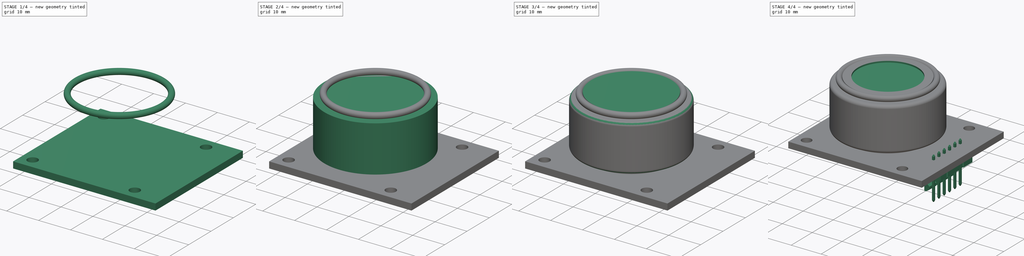
[diagram: build sequence overview — one tinted view per stage of 4, left to right]
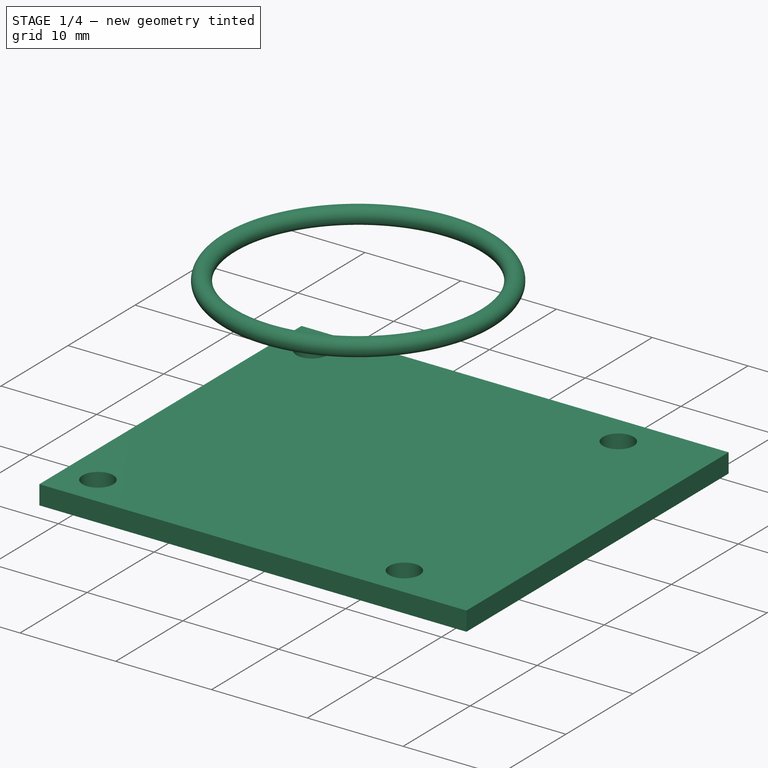
[diagram: stage 1 of 4 — iso view after this stage's code; geometry added in this stage tinted green]
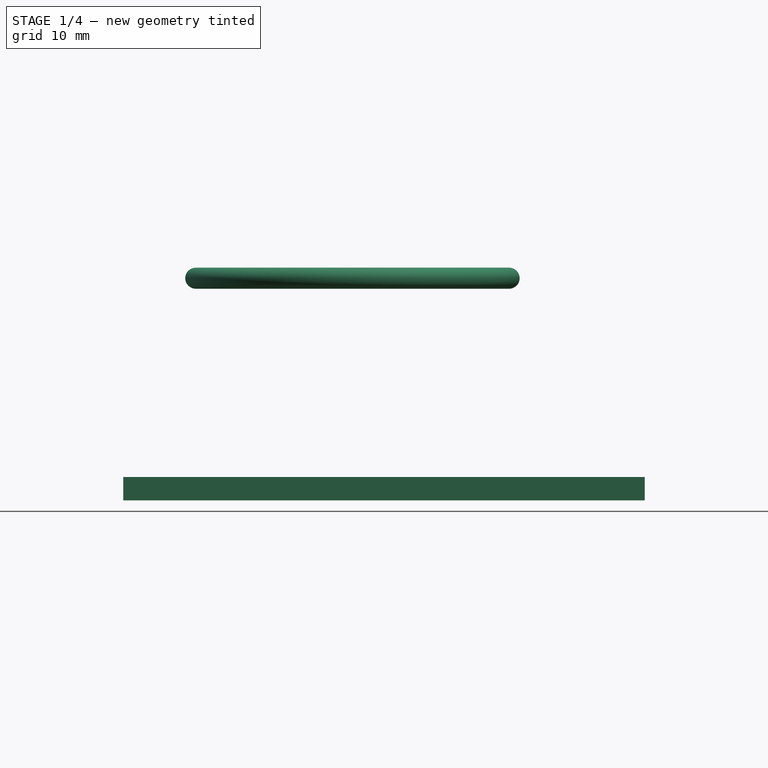
[diagram: stage 1 of 4 — front view after this stage's code; geometry added in this stage tinted green]
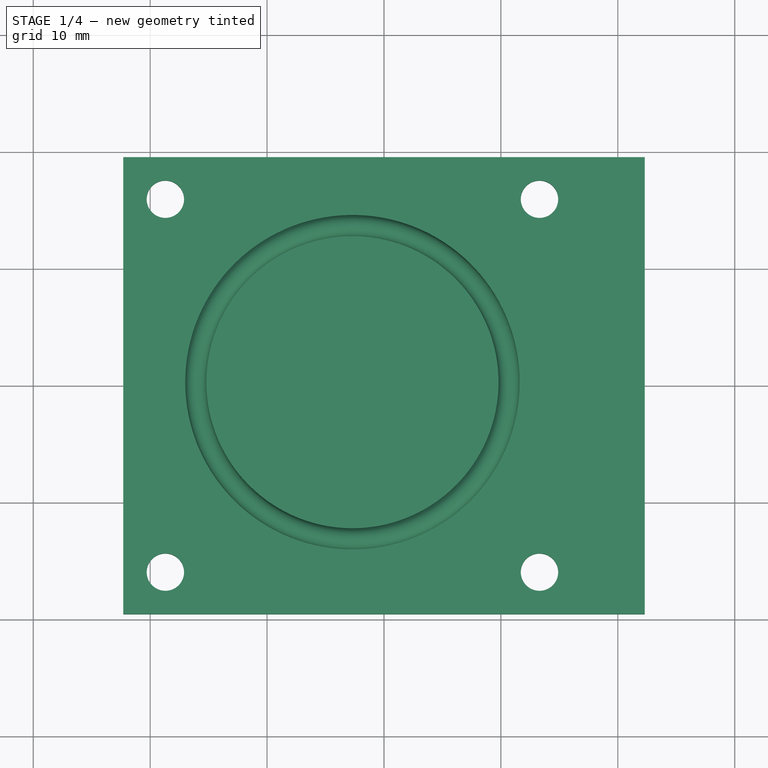
[diagram: stage 1 of 4 — top view after this stage's code; geometry added in this stage tinted green]
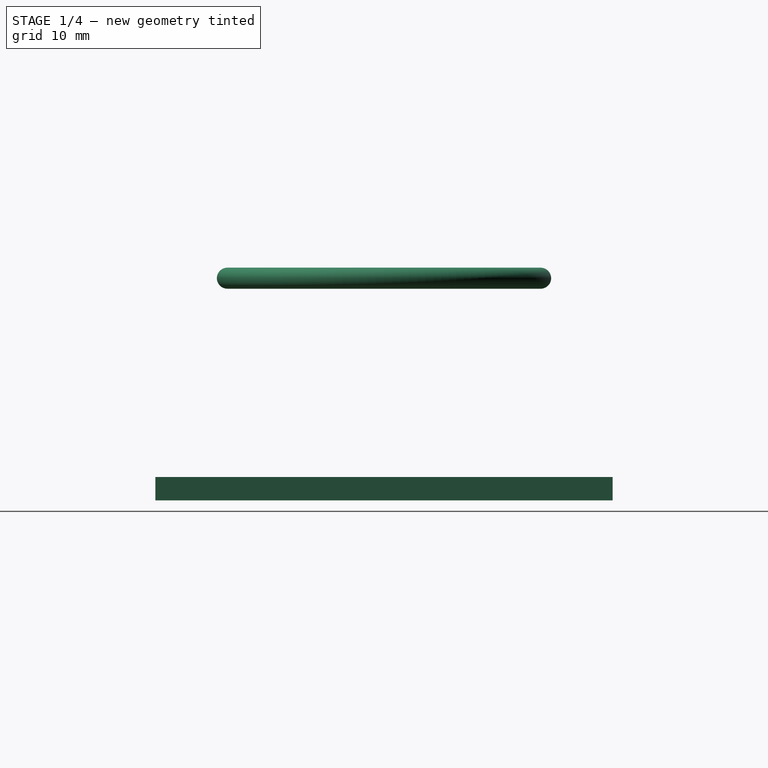
[diagram: stage 1 of 4 — right view after this stage's code; geometry added in this stage tinted green]
FCSTD DOCUMENT  (FreeCAD 0.16R6712 (Git))
Label: isb
License: All rights reserved
LicenseURL: http://en.wikipedia.org/wiki/All_rights_reserved
objects: Sketcher::SketchObject×6, PartDesign::Pad×4, PartDesign::Fillet×2, PartDesign::Pocket×1, Part::Feature×1, Part::Torus×1, Part::MultiFuse×1
note: 21 computed .brp shape members not serialized (recipe doc carries the construction recipe); baked Part::Feature solids carry a one-line shape summary decoded from their .brp

FEATURE [Sketcher::SketchObject] Sketch
  sketch-geometry (10):
    g0: LineSegment StartX=-22.3 StartY=19.55 StartZ=0 EndX=22.3 EndY=19.55 EndZ=0
    g1: LineSegment StartX=22.3 StartY=19.55 StartZ=0 EndX=22.3 EndY=-19.55 EndZ=0
    g2: LineSegment StartX=22.3 StartY=-19.55 StartZ=0 EndX=-22.3 EndY=-19.55 EndZ=0
    g3: LineSegment StartX=-22.3 StartY=-19.55 StartZ=0 EndX=-22.3 EndY=19.55 EndZ=0
    g4: Circle CenterX=-18.7 CenterY=15.95 CenterZ=0 NormalX=0 NormalY=0 NormalZ=1 Radius=1.6
    g5: Circle CenterX=13.3 CenterY=15.95 CenterZ=0 NormalX=0 NormalY=0 NormalZ=1 Radius=1.6
    g6: LineSegment [constr] StartX=-18.7 StartY=15.95 StartZ=0 EndX=13.3 EndY=15.95 EndZ=0
    g7: Circle CenterX=-18.7 CenterY=-15.95 CenterZ=0 NormalX=0 NormalY=0 NormalZ=1 Radius=1.6
    g8: LineSegment [constr] StartX=-18.7 StartY=-15.95 StartZ=0 EndX=13.3 EndY=-15.95 EndZ=0
    g9: Circle CenterX=13.3 CenterY=-15.95 CenterZ=0 NormalX=0 NormalY=0 NormalZ=1 Radius=1.6
  constraints (28):
    c: Coincident(g0,g1)
    c: Coincident(g1,g2)
    c: Coincident(g2,g3)
    c: Coincident(g3,g0)
    c: Horizontal(g2)
    c: Vertical(g1)
    c: Vertical(g3)
    c: DistanceX(g0,g0) = 44.6
    c: DistanceY(g3,g3) = 39.1
    c: Equal(g0,g2)
    c: Equal(g3,g1)
    c: Symmetric(g0,g2,g-1)
    c: Symmetric(g0,g0,g-2)
    c: Radius(g4) = 1.6
    c: DistanceX(g0,g4) = 3.6
    c: DistanceX(g4,g5) = 32
    c: DistanceY(g4,g0) = 3.6
    c: Horizontal(g6)
    c: Coincident(g6,g5)
    c: Coincident(g6,g4)
    c: Horizontal(g8)
    c: Coincident(g8,g9)
    c: Coincident(g8,g7)
    c: Symmetric(g7,g4,g-1)
    c: Equal(g4,g7)
    c: Equal(g7,g9)
    c: Equal(g5,g4)
    c: Equal(g8,g6)
FEATURE [PartDesign::Pad] Pad
  Length = 2
  Length2 = 100
  Sketch = -> Sketch
  Type = 0
FEATURE [Part::Feature] Part__Feature  label="molex kk-254"
  Placement = pos=(17,0,-1.6) rot=(-0.57735,0.57735,-0.57735;2.0944rad)
  shape: bbox 6.35 x 15.09 x 14.22 mm, 170 faces (baked)
FEATURE [Part::Torus] Torus  label="Toro"
  Angle1 = -180
  Angle2 = 180
  Angle3 = 360
  Placement = pos=(-2.7,0,19) rot=(0,0,1;0rad)
  Radius1 = 13.4
  Radius2 = 0.9
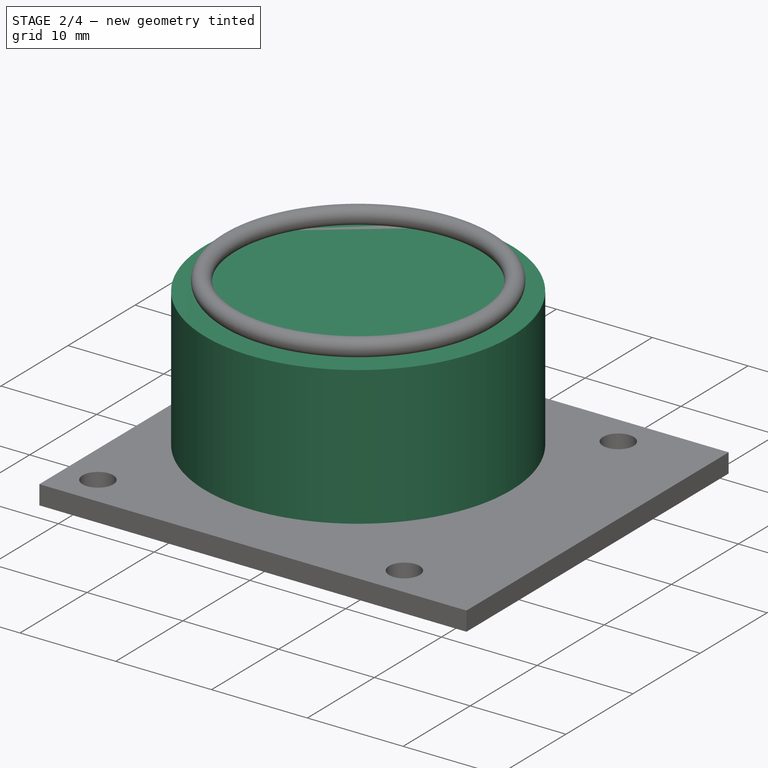
[diagram: stage 2 of 4 — iso view after this stage's code; geometry added in this stage tinted green]
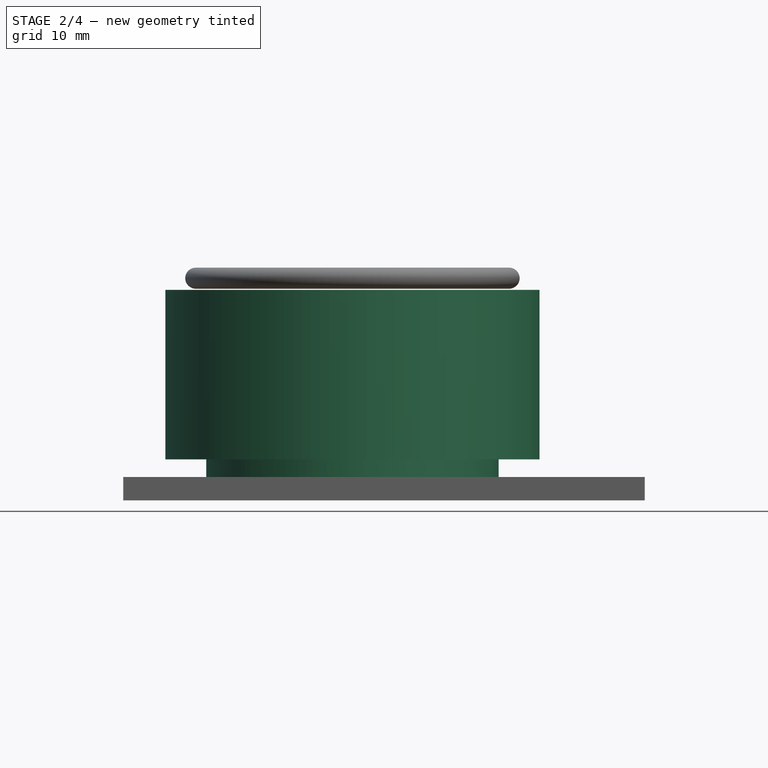
[diagram: stage 2 of 4 — front view after this stage's code; geometry added in this stage tinted green]
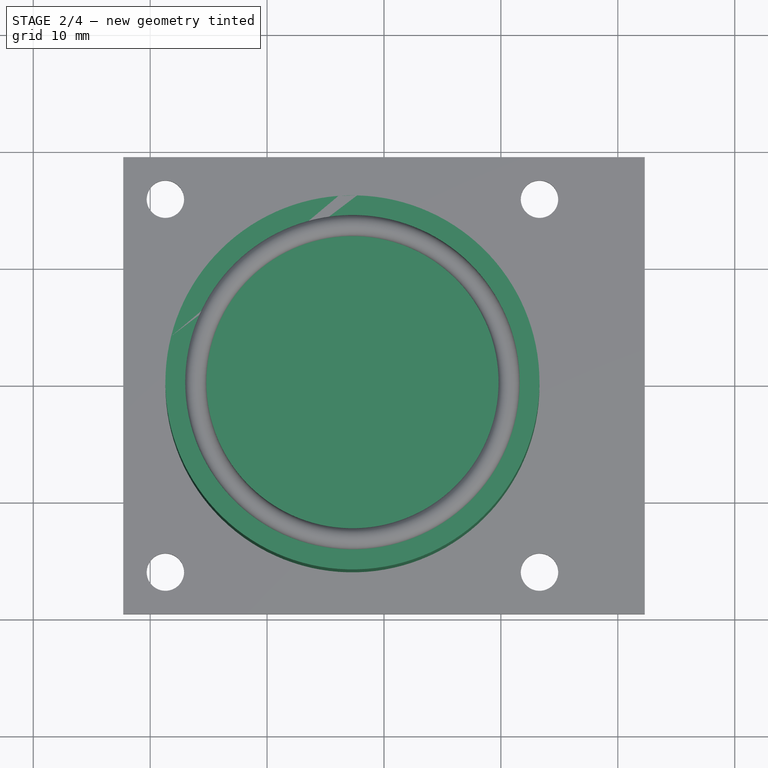
[diagram: stage 2 of 4 — top view after this stage's code; geometry added in this stage tinted green]
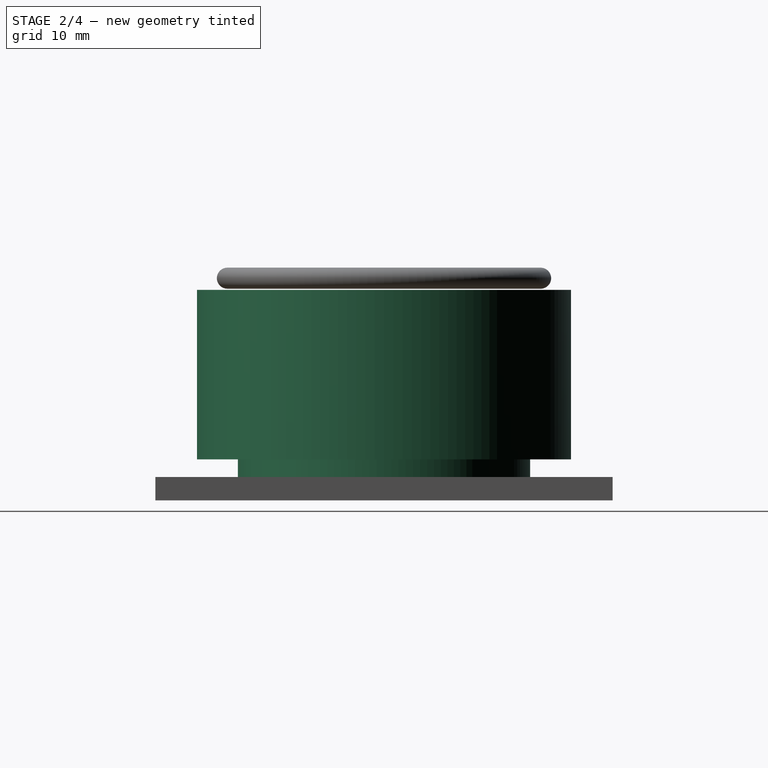
[diagram: stage 2 of 4 — right view after this stage's code; geometry added in this stage tinted green]
FEATURE [Sketcher::SketchObject] Sketch001
  Placement = pos=(0,0,2) rot=(0,0,1;0rad)
  Support = -> Pad [Face10]
  sketch-geometry (1):
    g0: Circle CenterX=-2.7 CenterY=0 CenterZ=0 NormalX=0 NormalY=0 NormalZ=1 Radius=12.5
  constraints (3):
    c: PointOnObject(g0,g-1)
    c: DistanceX(g0,g-1) = 2.7
    c: Radius(g0) = 12.5
FEATURE [PartDesign::Pad] Pad001
  Length = 1.5
  Length2 = 100
  Sketch = -> Sketch001
  Type = 0
FEATURE [Sketcher::SketchObject] Sketch002
  Placement = pos=(0,0,3.5) rot=(0,0,1;0rad)
  Support = -> Pad001 [Face12]
  sketch-geometry (1):
    g0: Circle CenterX=-2.7 CenterY=0 CenterZ=0 NormalX=0 NormalY=0 NormalZ=1 Radius=16
  constraints (3):
    c: PointOnObject(g0,g-1)
    c: DistanceX(g0,g-1) = 2.7
    c: Radius(g0) = 16
FEATURE [PartDesign::Pad] Pad002
  Length = 14.5
  Length2 = 100
  Sketch = -> Sketch002
  Type = 0
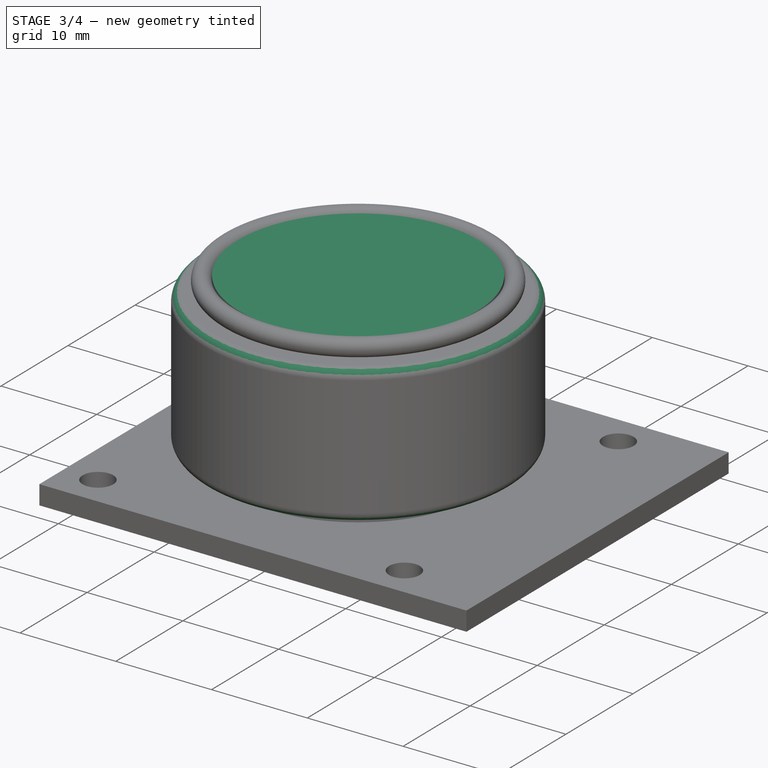
[diagram: stage 3 of 4 — iso view after this stage's code; geometry added in this stage tinted green]
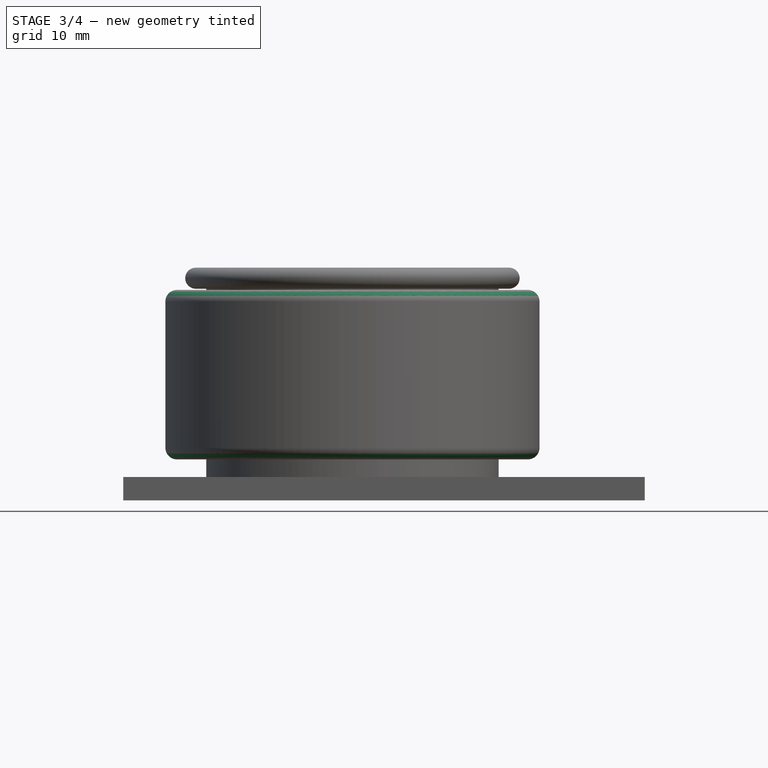
[diagram: stage 3 of 4 — front view after this stage's code; geometry added in this stage tinted green]
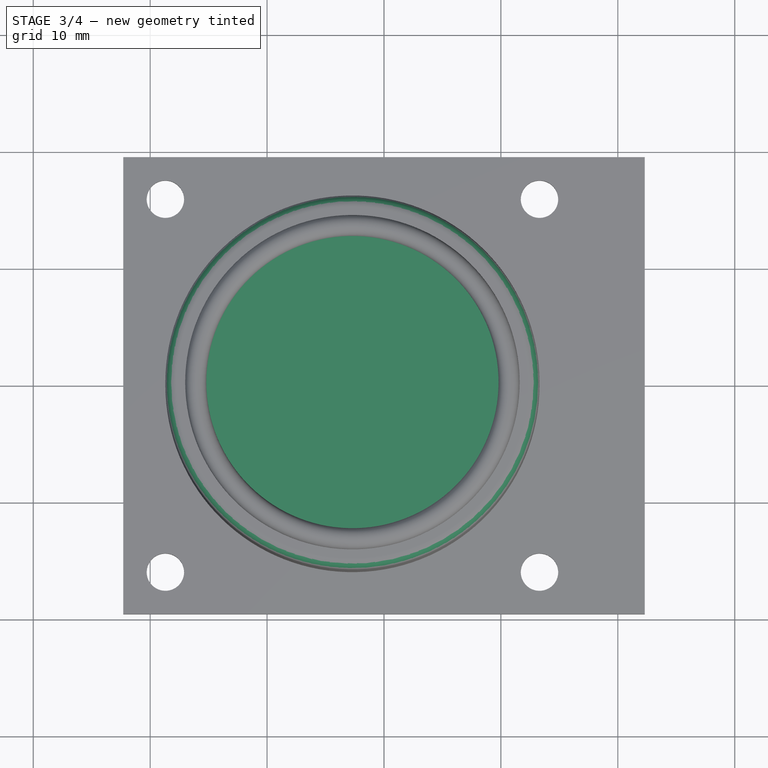
[diagram: stage 3 of 4 — top view after this stage's code; geometry added in this stage tinted green]
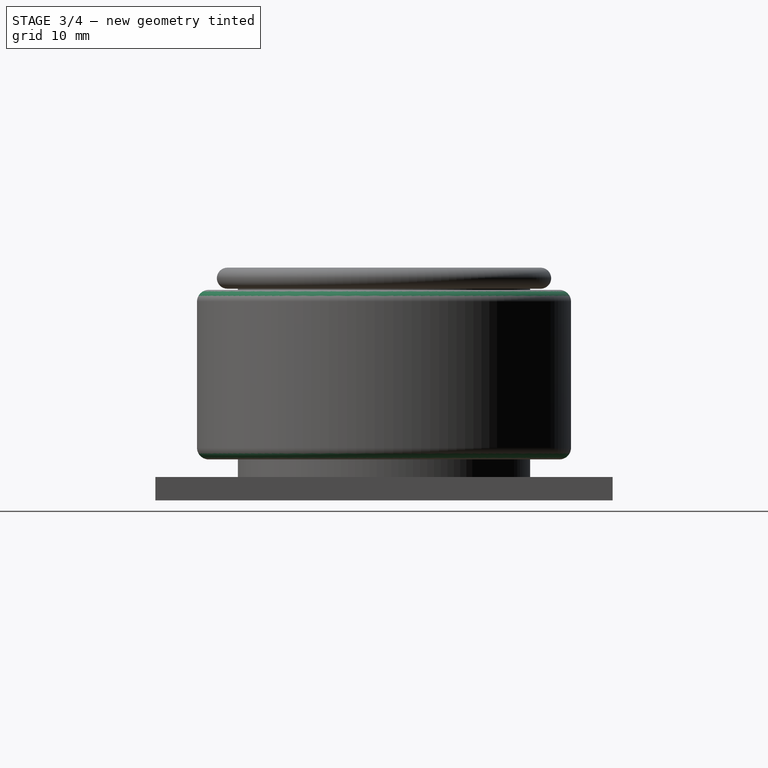
[diagram: stage 3 of 4 — right view after this stage's code; geometry added in this stage tinted green]
FEATURE [Sketcher::SketchObject] Sketch003
  Placement = pos=(0,0,18) rot=(0,0,1;0rad)
  Support = -> Pad002 [Face14]
  sketch-geometry (1):
    g0: Circle CenterX=-2.7 CenterY=0 CenterZ=0 NormalX=0 NormalY=0 NormalZ=1 Radius=16
  constraints (3):
    c: PointOnObject(g0,g-1)
    c: DistanceX(g0,g-1) = 2.7
    c: Radius(g0) = 16
FEATURE [PartDesign::Fillet] Fillet
  Base = -> Pad002 [Edge30]
  Radius = 1
FEATURE [PartDesign::Fillet] Fillet001
  Base = -> Fillet [Edge3]
  Radius = 1
FEATURE [Sketcher::SketchObject] Sketch004
  Placement = pos=(0,0,18) rot=(0,0,1;0rad)
  Support = -> Fillet001 [Face5]
  sketch-geometry (1):
    g0: Circle CenterX=-2.7 CenterY=0 CenterZ=0 NormalX=0 NormalY=0 NormalZ=1 Radius=12.5
  constraints (3):
    c: PointOnObject(g0,g-1)
    c: Radius(g0) = 12.5
    c: DistanceX(g0,g-1) = 2.7
FEATURE [PartDesign::Pad] Pad003
  Length = 1.5
  Length2 = 100
  Sketch = -> Sketch004
  Type = 0
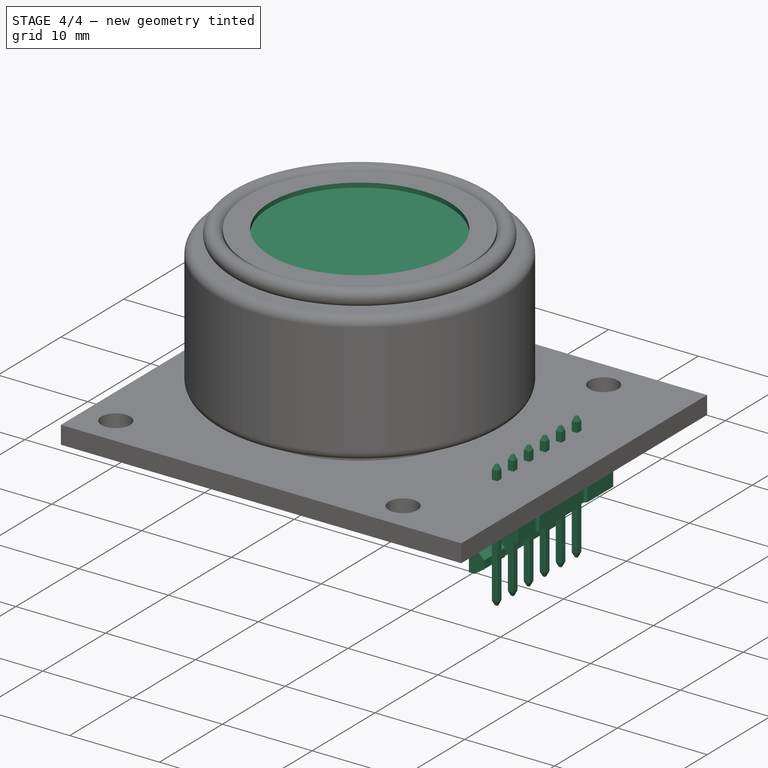
[diagram: stage 4 of 4 — iso view after this stage's code; geometry added in this stage tinted green]
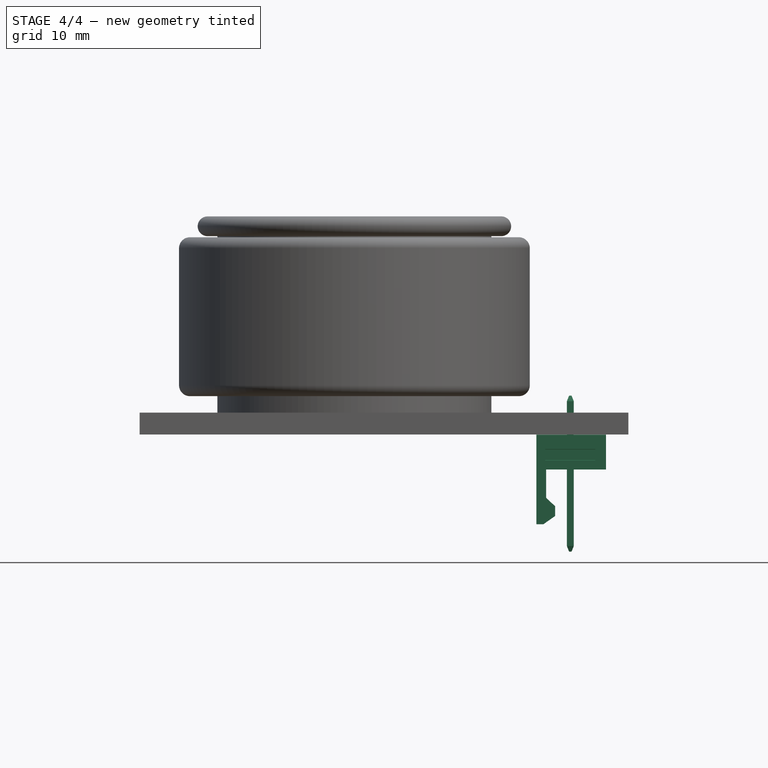
[diagram: stage 4 of 4 — front view after this stage's code; geometry added in this stage tinted green]
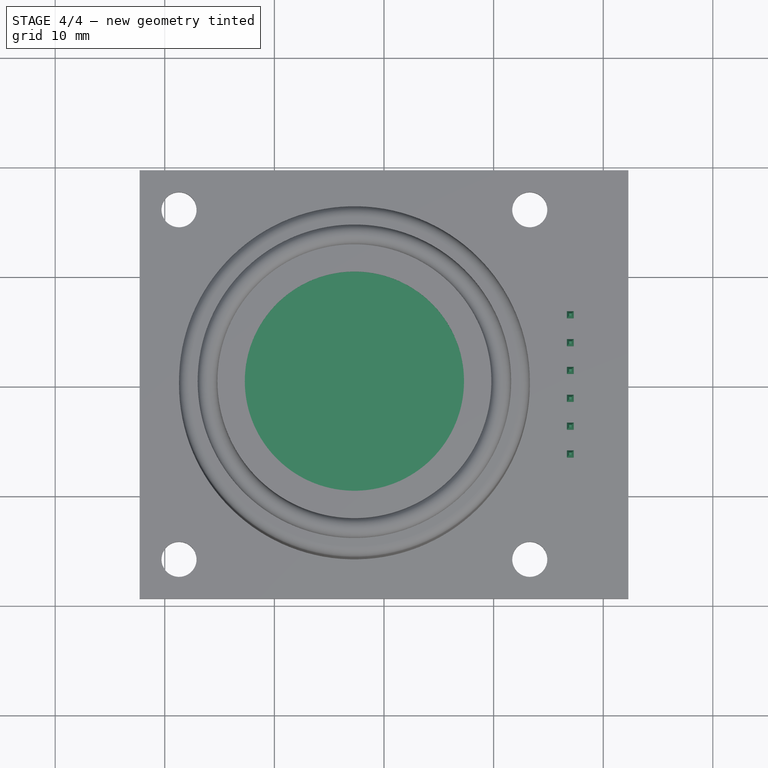
[diagram: stage 4 of 4 — top view after this stage's code; geometry added in this stage tinted green]
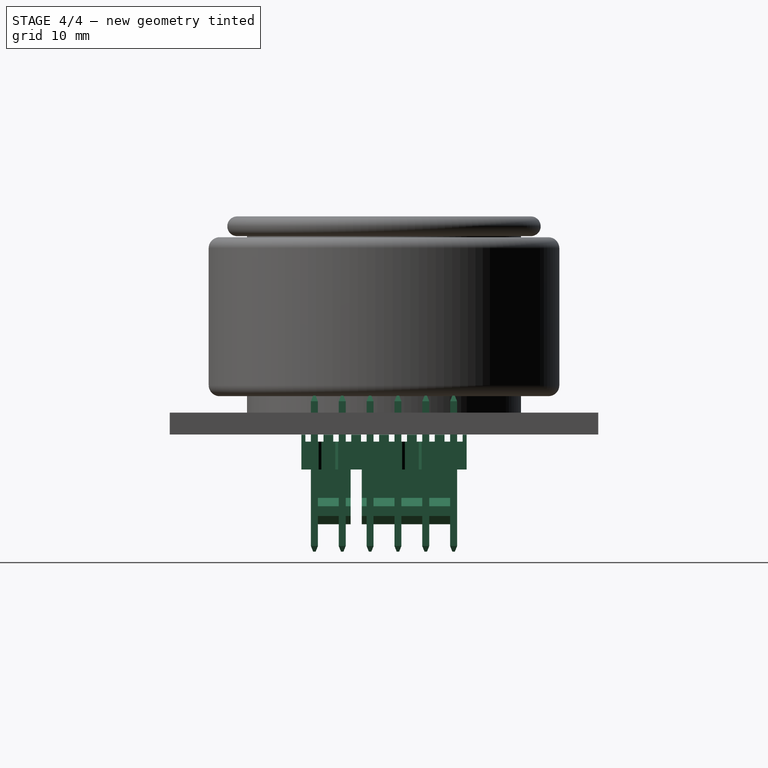
[diagram: stage 4 of 4 — right view after this stage's code; geometry added in this stage tinted green]
FEATURE [Sketcher::SketchObject] Sketch005
  Placement = pos=(0,0,19.5) rot=(0,0,1;0rad)
  Support = -> Pad003 [Face1]
  sketch-geometry (1):
    g0: Circle CenterX=-2.7 CenterY=0 CenterZ=0 NormalX=0 NormalY=0 NormalZ=1 Radius=10
  constraints (3):
    c: PointOnObject(g0,g-1)
    c: Radius(g0) = 10
    c: DistanceX(g0,g-1) = 2.7
FEATURE [PartDesign::Pocket] Pocket
  Length = 0.5
  Sketch = -> Sketch005
  Type = 0
FEATURE [Part::MultiFuse] Fusion
  Shapes = -> [Pocket,Part__Feature,Torus]
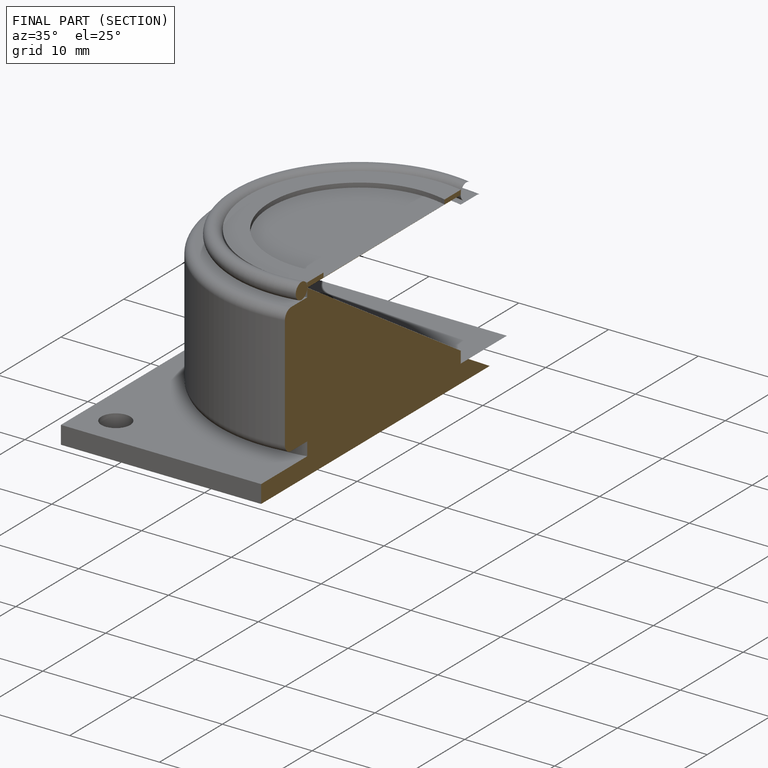
[diagram: finished part — half-section view (interior)]
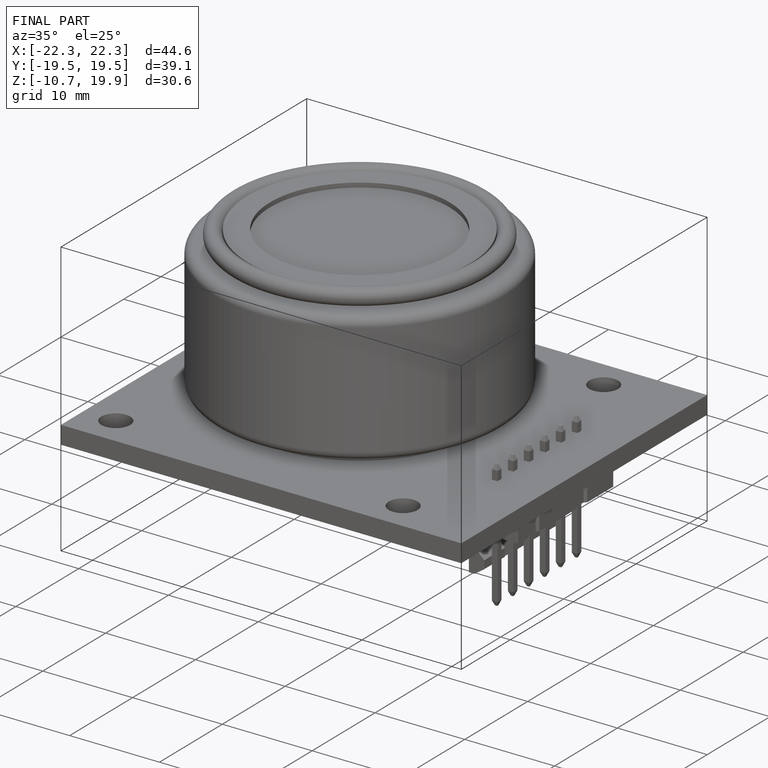
[diagram: finished part — iso view with bounding-box wireframe]
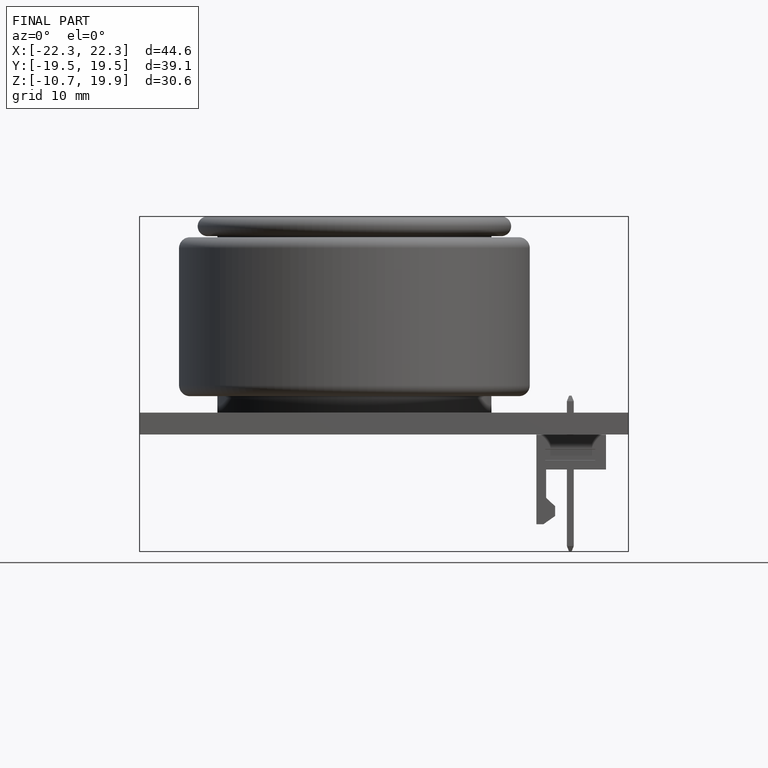
[diagram: finished part — front view with bounding-box wireframe]
